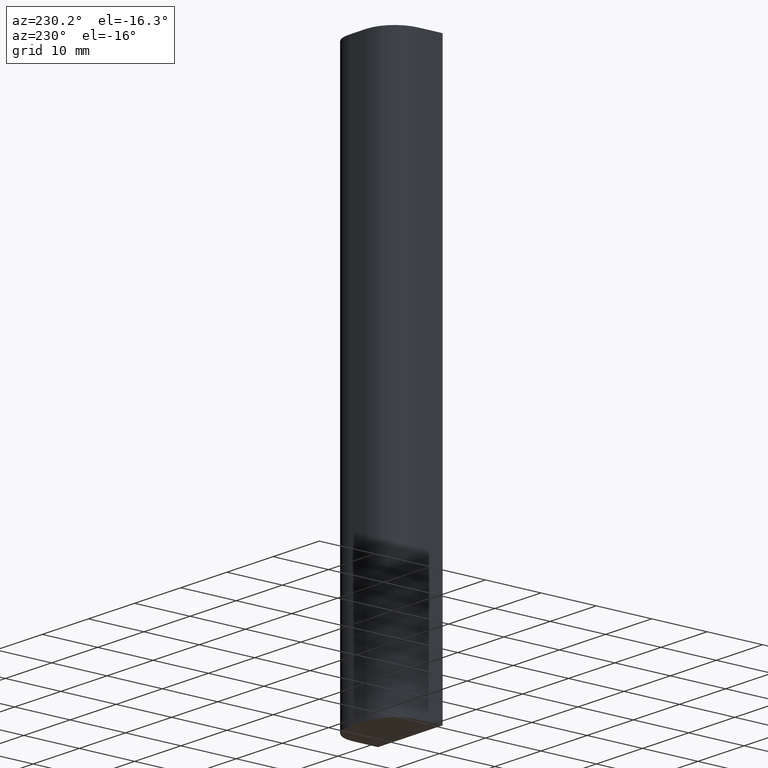
[diagram: clean part render]
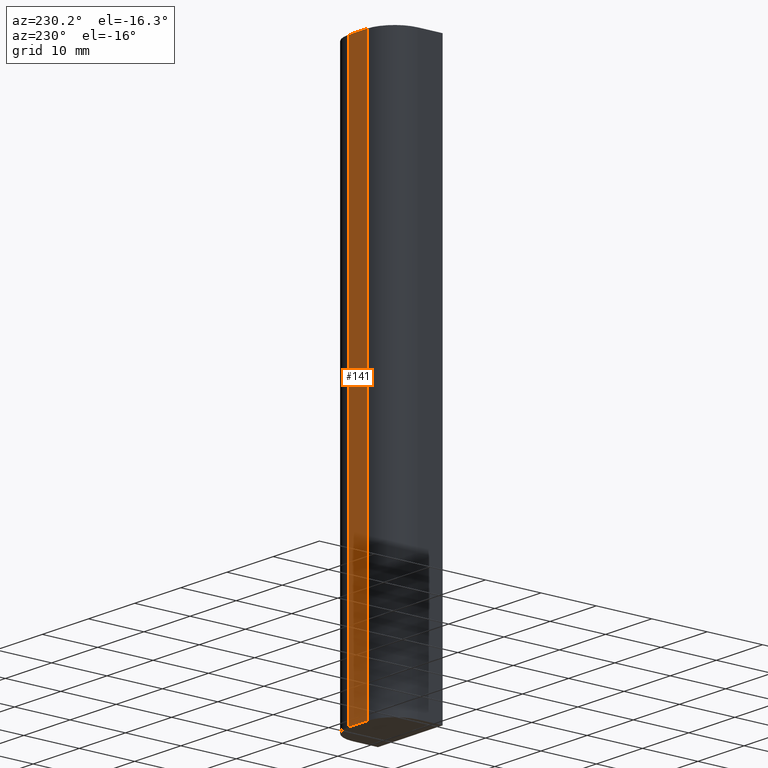
[diagram: same view with one face highlighted and labeled with its STEP entity id]
A machine part, auxiliary view. The second image highlights one B-rep face of the part: STEP entity #141.
In plain terms, the highlighted planar face has unit normal (0, 1, 0).
Its self-contained STEP definition (entity closure, byte-faithful):
#21=FACE_OUTER_BOUND('',#29,.T.);
#29=EDGE_LOOP('',(#110,#111,#112,#113));
#41=LINE('',#230,#55);
#45=LINE('',#241,#59);
#46=LINE('',#244,#60);
#47=LINE('',#245,#61);
#55=VECTOR('',#187,10.);
#59=VECTOR('',#199,10.);
#60=VECTOR('',#202,10.);
#61=VECTOR('',#203,10.);
#70=VERTEX_POINT('',#227);
#71=VERTEX_POINT('',#229);
#74=VERTEX_POINT('',#239);
#75=VERTEX_POINT('',#243);
#82=EDGE_CURVE('',#71,#70,#41,.T.);
#88=EDGE_CURVE('',#70,#74,#45,.T.);
#89=EDGE_CURVE('',#74,#75,#46,.T.);
#90=EDGE_CURVE('',#71,#75,#47,.T.);
#110=ORIENTED_EDGE('',*,*,#89,.T.);
#111=ORIENTED_EDGE('',*,*,#90,.F.);
#112=ORIENTED_EDGE('',*,*,#82,.T.);
#113=ORIENTED_EDGE('',*,*,#88,.T.);
#134=PLANE('',#172);
#141=ADVANCED_FACE('',(#21),#134,.T.);
#172=AXIS2_PLACEMENT_3D('',#242,#200,#201);
#187=DIRECTION('',(-1.,1.38777878078145E-16,0.));
#199=DIRECTION('',(0.,0.,1.));
#200=DIRECTION('center_axis',(1.38777878078145E-16,1.,0.));
#201=DIRECTION('ref_axis',(0.,0.,1.));
#202=DIRECTION('',(1.,-1.38777878078145E-16,0.));
#203=DIRECTION('',(0.,0.,1.));
#227=CARTESIAN_POINT('',(-2.,4.75,-50.));
#229=CARTESIAN_POINT('',(2.,4.75,-50.));
#230=CARTESIAN_POINT('',(2.,4.75,-50.));
#239=CARTESIAN_POINT('',(-2.,4.75,50.));
#241=CARTESIAN_POINT('',(-2.,4.75,0.));
#242=CARTESIAN_POINT('Origin',(-2.,4.75,0.));
#243=CARTESIAN_POINT('',(2.,4.75,50.));
#244=CARTESIAN_POINT('',(2.,4.75,50.));
#245=CARTESIAN_POINT('',(2.,4.75,0.));